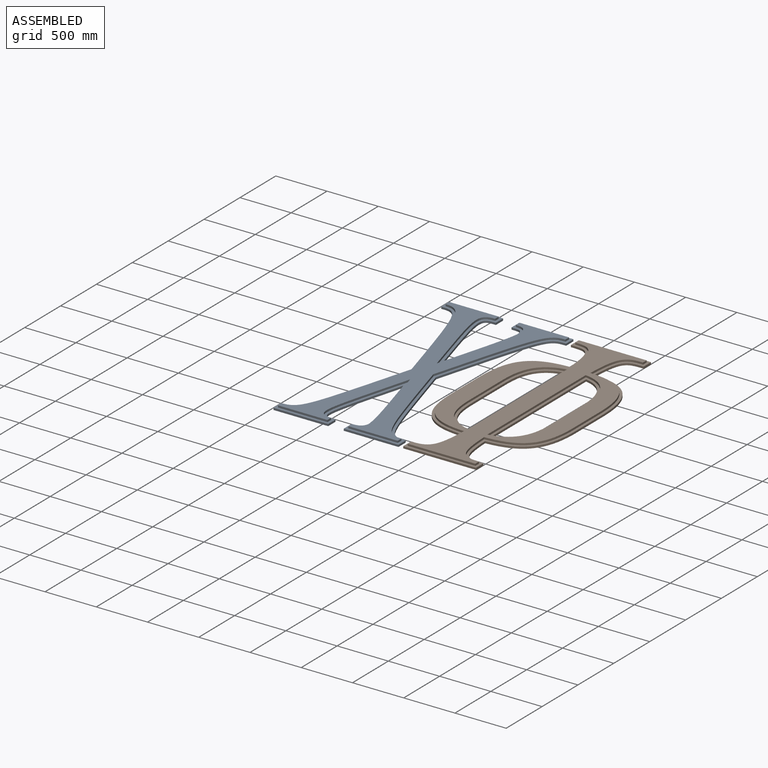
[diagram: assembled view]
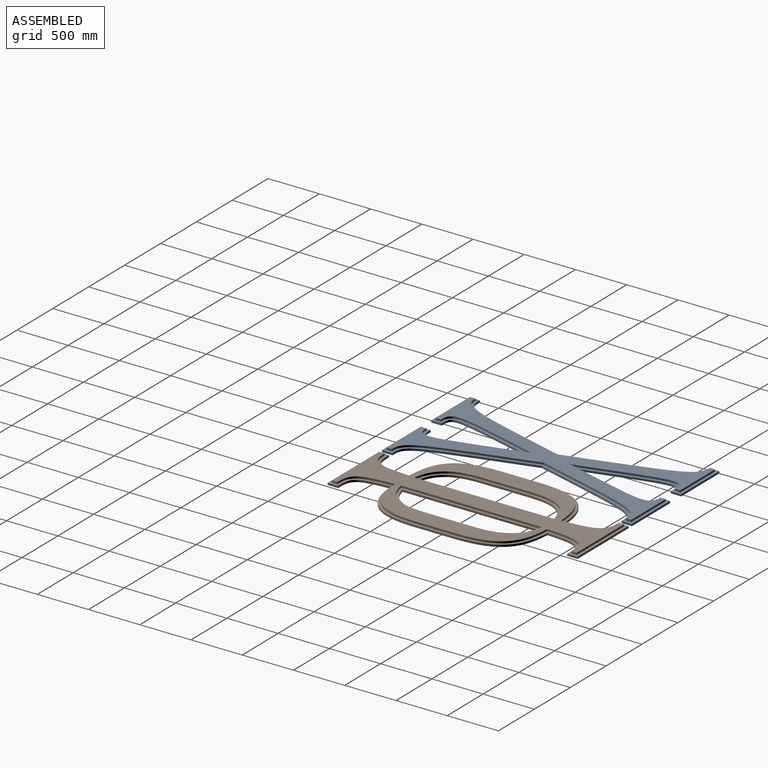
[diagram: assembled view, second angle]
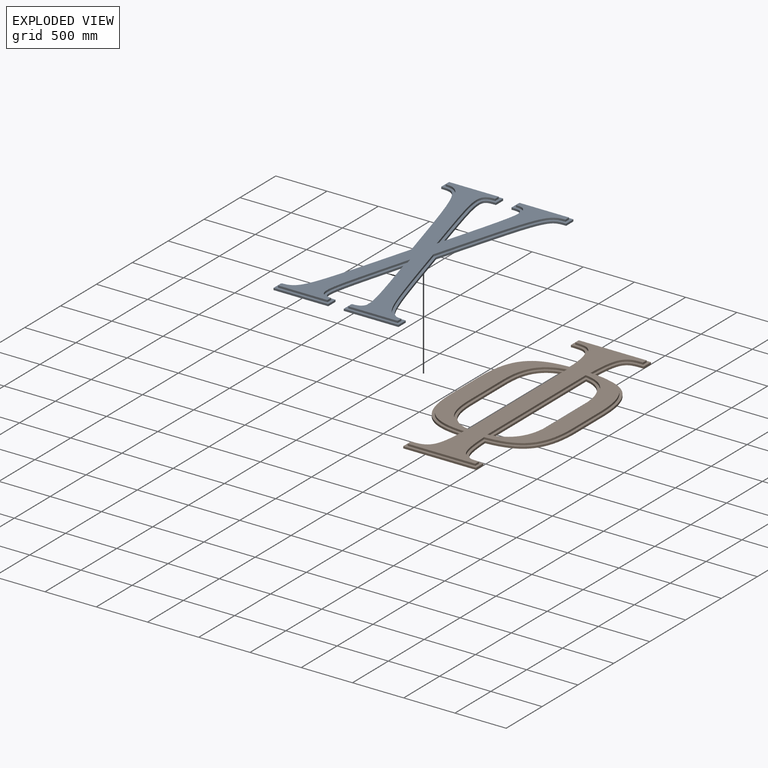
[diagram: exploded view]
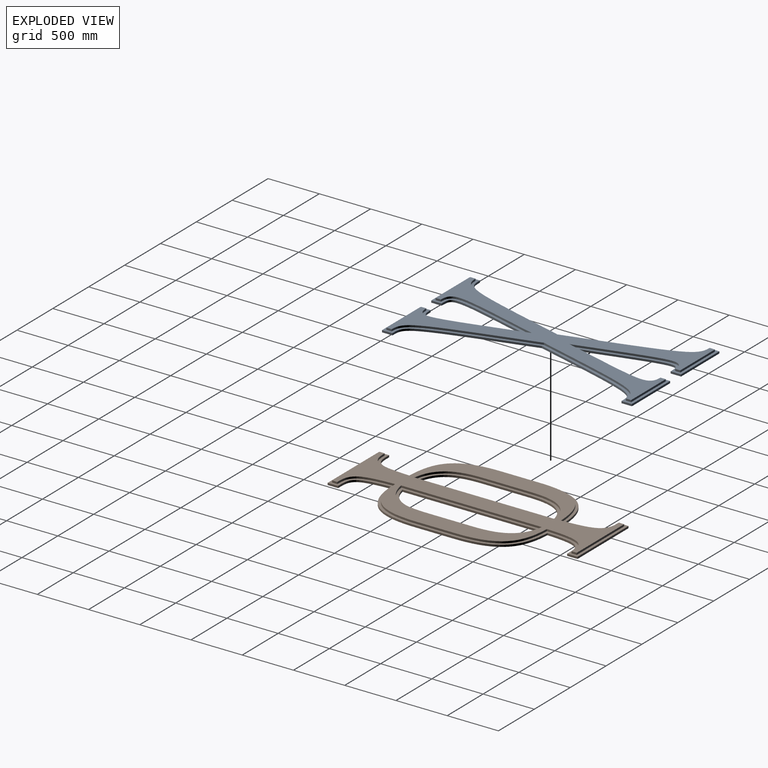
[diagram: exploded view, second angle]
ASSEMBLY  parts=2 mates=2
PART A: 51 faces, bbox 1219.2x2438.4x38.1 mm
  f0: plane 2438.4x1219.2mm, normal (0,0,1), area 299972.9mm2, adj f1,f3,f4,f5,f6,f7,f8,f9
  f1: plane 533.4x19.05mm, normal (0,1,0), area 10161.3mm2, adj f0,f2,f3,f6
  f2: plane 2438.4x1219.2mm, normal (0,0,-1), area 1134677.6mm2, adj f1,f3,f4,f5,f6,f15,f16,f17
  f3: plane 101.6x19.05mm, normal (-1,0,0), area 1935.5mm2, adj f0,f1,f2,f4
  f4: extruded ~1117.6x487.68mm, area 24421.9mm2, adj f0,f2,f3,f29
  f5: extruded ~838.2x187.61mm, area 18031.4mm2, adj f0,f2,f6,f18
  f6: plane 101.6x19.05mm, normal (1,0,0), area 1935.5mm2, adj f0,f1,f2,f5
  f7: plane 50.95x19.05mm, normal (-1,0,0), area 970.5mm2, adj f0,f8,f13,f14
  f8: extruded ~1117.45x481.52mm, area 24198.9mm2, adj f0,f7,f9,f14
  f9: plane 25.4x19.05mm, normal (-0.96,-0.27,0), area 502.7mm2, adj f0,f8,f14,f34
  f10: plane 90.83x25.4mm, normal (0.96,0.27,0), area 1796.8mm2, adj f0,f11,f14,f23
  f11: extruded ~866.96x187.61mm, area 18373.6mm2, adj f0,f10,f12,f14
  f12: plane 50.95x19.05mm, normal (1,0,0), area 970.5mm2, adj f0,f11,f13,f14
  f13: plane 482.6x19.05mm, normal (0,1,0), area 9193.5mm2, adj f0,f7,f12,f14
  f14: plane 2387.6x1172.43mm, normal (0,0,1), area 834704.7mm2, adj f7,f8,f9,f10,f11,f12,f13,f20
  f15: plane 533.4x19.05mm, normal (0,1,0), area 10161.3mm2, adj f0,f2,f16,f19
  f16: plane 101.6x19.05mm, normal (1,0,0), area 1935.5mm2, adj f0,f2,f15,f17
  f17: extruded ~1117.6x487.68mm, area 24421.9mm2, adj f0,f2,f16,f41
  f18: extruded ~838.2x187.61mm, area 18031.4mm2, adj f0,f2,f5,f19
  f19: plane 101.6x19.05mm, normal (-1,0,0), area 1935.5mm2, adj f0,f2,f15,f18
  f20: plane 50.95x19.05mm, normal (1,0,0), area 970.5mm2, adj f0,f14,f21,f26
  f21: extruded ~1117.45x481.52mm, area 24198.9mm2, adj f0,f14,f20,f22
  f22: plane 25.4x19.05mm, normal (0.96,-0.27,0), area 502.7mm2, adj f0,f14,f21,f46
  f23: plane 90.83x25.4mm, normal (-0.96,0.27,0), area 1796.8mm2, adj f0,f10,f14,f24
  f24: extruded ~866.96x187.61mm, area 18373.6mm2, adj f0,f14,f23,f25
  f25: plane 50.95x19.05mm, normal (-1,0,0), area 970.5mm2, adj f0,f14,f24,f26
  f26: plane 482.6x19.05mm, normal (0,1,0), area 9193.5mm2, adj f0,f14,f20,f25
  f27: plane 533.4x19.05mm, normal (0,-1,0), area 10161.3mm2, adj f0,f2,f28,f31
  f28: plane 101.6x19.05mm, normal (-1,0,0), area 1935.5mm2, adj f0,f2,f27,f29
  f29: extruded ~1117.6x487.68mm, area 24421.9mm2, adj f0,f2,f4,f28
  f30: extruded ~838.2x187.61mm, area 18031.4mm2, adj f0,f2,f31,f42
  f31: plane 101.6x19.05mm, normal (1,0,0), area 1935.5mm2, adj f0,f2,f27,f30
  f32: plane 50.95x19.05mm, normal (-1,0,0), area 970.5mm2, adj f0,f14,f33,f38
  f33: extruded ~1117.45x481.52mm, area 24198.9mm2, adj f0,f14,f32,f34
  f34: plane 25.4x19.05mm, normal (-0.96,0.27,0), area 502.7mm2, adj f0,f9,f14,f33
  f35: plane 90.83x25.4mm, normal (0.96,-0.27,0), area 1796.8mm2, adj f0,f14,f36,f47
  f36: extruded ~866.96x187.61mm, area 18373.6mm2, adj f0,f14,f35,f37
  f37: plane 50.95x19.05mm, normal (1,0,0), area 970.5mm2, adj f0,f14,f36,f38
  f38: plane 482.6x19.05mm, normal (0,-1,0), area 9193.5mm2, adj f0,f14,f32,f37
  f39: plane 533.4x19.05mm, normal (0,-1,0), area 10161.3mm2, adj f0,f2,f40,f43
  f40: plane 101.6x19.05mm, normal (1,0,0), area 1935.5mm2, adj f0,f2,f39,f41
  f41: extruded ~1117.6x487.68mm, area 24421.9mm2, adj f0,f2,f17,f40
  f42: extruded ~838.2x187.61mm, area 18031.4mm2, adj f0,f2,f30,f43
  f43: plane 101.6x19.05mm, normal (-1,0,0), area 1935.5mm2, adj f0,f2,f39,f42
  f44: plane 50.95x19.05mm, normal (1,0,0), area 970.5mm2, adj f0,f14,f45,f50
  f45: extruded ~1117.45x481.52mm, area 24198.9mm2, adj f0,f14,f44,f46
  f46: plane 25.4x19.05mm, normal (0.96,0.27,0), area 502.7mm2, adj f0,f14,f22,f45
  f47: plane 90.83x25.4mm, normal (-0.96,-0.27,0), area 1796.8mm2, adj f0,f14,f35,f48
  f48: extruded ~866.96x187.61mm, area 18373.6mm2, adj f0,f14,f47,f49
  f49: plane 50.95x19.05mm, normal (-1,0,0), area 970.5mm2, adj f0,f14,f48,f50
  f50: plane 482.6x19.05mm, normal (0,-1,0), area 9193.5mm2, adj f0,f14,f44,f49
PART B: 53 faces, bbox 1219.2x2438.4x38.1 mm
  f0: plane 1372.02x314.84mm, normal (0,0,1), area 75264.4mm2, adj f5,f6,f7,f11,f17,f18,f36,f44
  f1: plane 711.2x19.05mm, normal (0,1,0), area 13548.4mm2, adj f3,f4,f8,f25
  f2: plane 381x19.05mm, normal (-1,0,0), area 7258.1mm2, adj f3,f4,f10,f39
  f3: plane 2438.4x1219.2mm, normal (0,0,1), area 201664.2mm2, adj f1,f2,f8,f9,f10,f12,f13,f14
  f4: plane 2438.4x1219.2mm, normal (0,0,-1), area 1453077.4mm2, adj f1,f2,f5,f6,f7,f8,f9,f10
  f5: plane 1310.93x19.05mm, normal (-1,0,0), area 24973.2mm2, adj f0,f4,f6,f36
  f6: extruded ~464.96x257.18mm, area 11189.5mm2, adj f0,f4,f5,f7
  f7: plane 381x19.05mm, normal (1,0,0), area 7258.1mm2, adj f0,f4,f6,f36
  f8: plane 101.6x19.05mm, normal (-1,0,0), area 1935.5mm2, adj f1,f3,f4,f9
  f9: extruded ~352.91x230.39mm, area 9537.2mm2, adj f3,f4,f8,f10
  f10: extruded ~574.19x484.39mm, area 16423.5mm2, adj f2,f3,f4,f9
  f11: plane 1371.62x19.05mm, normal (-1,0,0), area 26129.4mm2, adj f0,f18,f19,f44
  f12: plane 660.4x19.05mm, normal (0,1,0), area 12580.6mm2, adj f3,f13,f19,f29
  f13: plane 50.86x19.05mm, normal (-1,0,0), area 968.8mm2, adj f3,f12,f14,f19
  f14: extruded ~402.18x231.46mm, area 10269.7mm2, adj f3,f13,f15,f19
  f15: extruded ~550.26x485.46mm, area 16168.4mm2, adj f3,f14,f16,f19
  f16: plane 381x19.05mm, normal (-1,0,0), area 7258mm2, adj f3,f15,f19,f43
  f17: plane 381x19.05mm, normal (1,0,0), area 7258mm2, adj f0,f18,f19,f44
  f18: extruded ~495.31x307.98mm, area 12442.2mm2, adj f0,f11,f17,f19
  f19: plane 2387.6x1168.4mm, normal (0,0,1), area 1100884.4mm2, adj f11,f12,f13,f14,f15,f16,f17,f18
  f20: plane 1372.02x314.84mm, normal (0,0,1), area 75264.4mm2, adj f22,f23,f24,f28,f33,f34,f45,f52
  f21: plane 381x19.05mm, normal (1,0,0), area 7258.1mm2, adj f3,f4,f27,f48
  f22: plane 1310.93x19.05mm, normal (1,0,0), area 24973.2mm2, adj f4,f20,f23,f45
  f23: extruded ~464.96x257.18mm, area 11189.5mm2, adj f4,f20,f22,f24
  f24: plane 381x19.05mm, normal (-1,0,0), area 7258.1mm2, adj f4,f20,f23,f45
  f25: plane 101.6x19.05mm, normal (1,0,0), area 1935.5mm2, adj f1,f3,f4,f26
  f26: extruded ~352.91x230.39mm, area 9537.2mm2, adj f3,f4,f25,f27
  f27: extruded ~574.19x484.39mm, area 16423.5mm2, adj f3,f4,f21,f26
  f28: plane 1371.62x19.05mm, normal (1,0,0), area 26129.4mm2, adj f19,f20,f34,f52
  f29: plane 50.86x19.05mm, normal (1,0,0), area 968.8mm2, adj f3,f12,f19,f30
  f30: extruded ~402.18x231.46mm, area 10269.7mm2, adj f3,f19,f29,f31
  f31: extruded ~550.26x485.46mm, area 16168.4mm2, adj f3,f19,f30,f32
  f32: plane 381x19.05mm, normal (1,0,0), area 7258mm2, adj f3,f19,f31,f51
  f33: plane 381x19.05mm, normal (-1,0,0), area 7258mm2, adj f19,f20,f34,f52
  f34: extruded ~495.31x307.98mm, area 12442.2mm2, adj f19,f20,f28,f33
  f35: plane 711.2x19.05mm, normal (0,-1,0), area 13548.4mm2, adj f3,f4,f37,f46
  f36: extruded ~464.96x257.18mm, area 11189.5mm2, adj f0,f4,f5,f7
  f37: plane 101.6x19.05mm, normal (-1,0,0), area 1935.5mm2, adj f3,f4,f35,f38
  f38: extruded ~352.91x230.39mm, area 9537.2mm2, adj f3,f4,f37,f39
  f39: extruded ~574.19x484.39mm, area 16423.5mm2, adj f2,f3,f4,f38
  f40: plane 660.4x19.05mm, normal (0,-1,0), area 12580.6mm2, adj f3,f19,f41,f49
  f41: plane 50.86x19.05mm, normal (-1,0,0), area 968.8mm2, adj f3,f19,f40,f42
  f42: extruded ~402.18x231.46mm, area 10269.7mm2, adj f3,f19,f41,f43
  f43: extruded ~550.26x485.46mm, area 16168.4mm2, adj f3,f16,f19,f42
  f44: extruded ~495.31x307.98mm, area 12442.2mm2, adj f0,f11,f17,f19
  f45: extruded ~464.96x257.18mm, area 11189.5mm2, adj f4,f20,f22,f24
  f46: plane 101.6x19.05mm, normal (1,0,0), area 1935.5mm2, adj f3,f4,f35,f47
  f47: extruded ~352.91x230.39mm, area 9537.2mm2, adj f3,f4,f46,f48
  f48: extruded ~574.19x484.39mm, area 16423.5mm2, adj f3,f4,f21,f47
  f49: plane 50.86x19.05mm, normal (1,0,0), area 968.8mm2, adj f3,f19,f40,f50
  f50: extruded ~402.18x231.46mm, area 10269.7mm2, adj f3,f19,f49,f51
  f51: extruded ~550.26x485.46mm, area 16168.4mm2, adj f3,f19,f32,f50
  f52: extruded ~495.31x307.98mm, area 12442.2mm2, adj f19,f20,f28,f33
PLACE A t=(-304.87,-4.29,-84.25)mm
PLACE B t=(706.44,-4.29,-84.25)mm
MATE planar B.f1 <-> A.f1  axis (0,1,0) through (706.44,1214.91,-74.73)mm
MATE planar A.f0 <-> B.f0  axis (0,0,1) through (-304.88,-4.36,-65.2)mm
